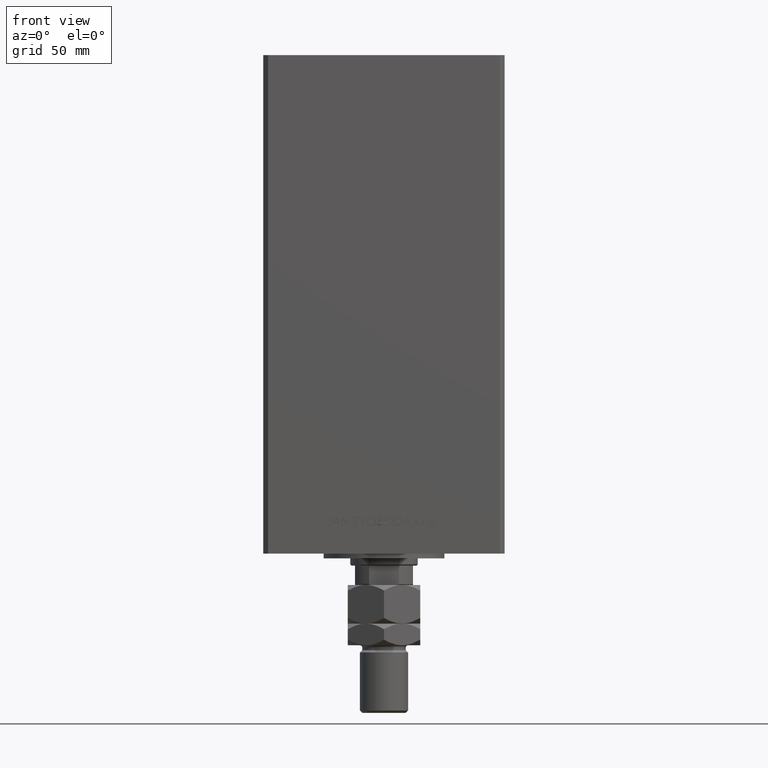
[diagram: clean part render]
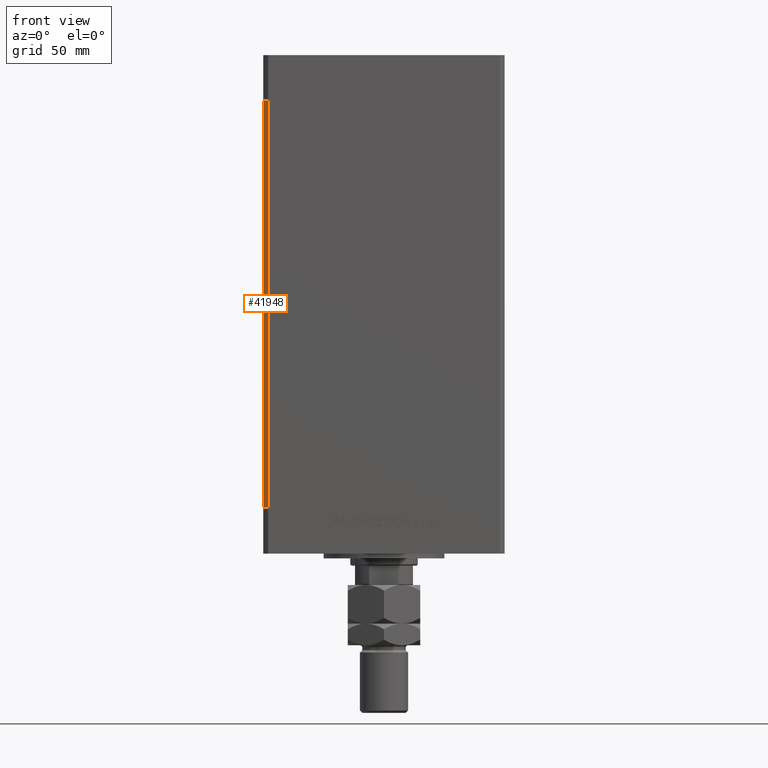
[diagram: same view with one face highlighted and labeled with its STEP entity id]
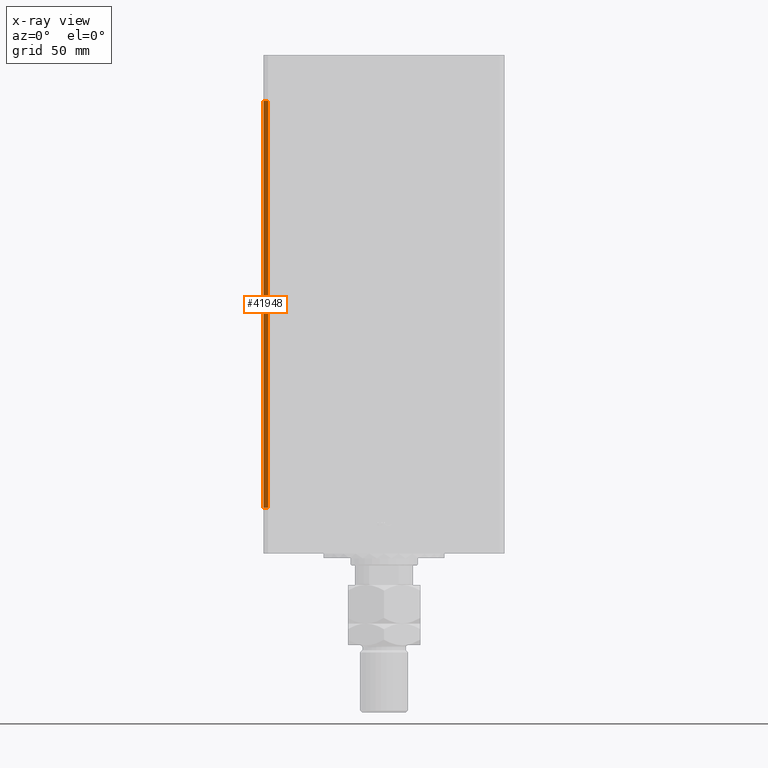
[diagram: x-ray of the same camera — body ghosted, the highlighted face saturated]
A machine part, front view. The second image highlights one B-rep face of the part: STEP entity #41948.
The next image is the same camera in x-ray: the body ghosted, the highlighted face saturated — about 0% of this face is hidden behind the body in this view.
In plain terms, the highlighted planar face has unit normal (0.7071, 0.7071, 0).
Its self-contained STEP definition (entity closure, byte-faithful):
#374 = DIRECTION ( 'NONE',  ( -0.7071067811865474617, 0.7071067811865474617, 0.000000000000000000 ) ) ;
#1602 = CARTESIAN_POINT ( 'NONE',  ( -49.99999999999998579, -41.49999999999999289, 168.5000000000000000 ) ) ;
#2316 = VERTEX_POINT ( 'NONE', #23486 ) ;
#4036 = CARTESIAN_POINT ( 'NONE',  ( -49.99999999999998579, -41.49999999999999289, 0.000000000000000000 ) ) ;
#4288 = DIRECTION ( 'NONE',  ( -0.000000000000000000, -0.000000000000000000, -1.000000000000000000 ) ) ;
#4992 = CARTESIAN_POINT ( 'NONE',  ( -49.99999999999998579, -41.49999999999999289, 168.5000000000000000 ) ) ;
#5937 = VECTOR ( 'NONE', #37376, 1000.000000000000000 ) ;
#6165 = ORIENTED_EDGE ( 'NONE', *, *, #50470, .F. ) ;
#8422 = VERTEX_POINT ( 'NONE', #33880 ) ;
#11354 = VECTOR ( 'NONE', #32681, 1000.000000000000114 ) ;
#13652 = LINE ( 'NONE', #1602, #11354 ) ;
#16341 = CARTESIAN_POINT ( 'NONE',  ( -49.99999999999998579, -41.49999999999999289, 168.5000000000000000 ) ) ;
#16822 = AXIS2_PLACEMENT_3D ( 'NONE', #4992, #23494, #374 ) ;
#19130 = ORIENTED_EDGE ( 'NONE', *, *, #40524, .T. ) ;
#19706 = DIRECTION ( 'NONE',  ( 0.7071067811865474617, -0.7071067811865474617, 0.000000000000000000 ) ) ;
#22187 = EDGE_CURVE ( 'NONE', #38350, #8422, #27919, .T. ) ;
#23461 = EDGE_CURVE ( 'NONE', #25823, #2316, #13652, .T. ) ;
#23486 = CARTESIAN_POINT ( 'NONE',  ( -47.99999999999998579, -43.50000000000000000, 168.5000000000000000 ) ) ;
#23494 = DIRECTION ( 'NONE',  ( 0.7071067811865475727, 0.7071067811865475727, -0.000000000000000000 ) ) ;
#24120 = VECTOR ( 'NONE', #4288, 1000.000000000000000 ) ;
#24847 = CARTESIAN_POINT ( 'NONE',  ( -47.99999999999998579, -43.50000000000000000, 168.5000000000000000 ) ) ;
#25823 = VERTEX_POINT ( 'NONE', #45870 ) ;
#26547 = ORIENTED_EDGE ( 'NONE', *, *, #22187, .T. ) ;
#27919 = LINE ( 'NONE', #4036, #40015 ) ;
#32681 = DIRECTION ( 'NONE',  ( 0.7071067811865474617, -0.7071067811865474617, 0.000000000000000000 ) ) ;
#33880 = CARTESIAN_POINT ( 'NONE',  ( -47.99999999999998579, -43.50000000000000000, 0.000000000000000000 ) ) ;
#35287 = FACE_OUTER_BOUND ( 'NONE', #38351, .T. ) ;
#37376 = DIRECTION ( 'NONE',  ( -0.000000000000000000, -0.000000000000000000, -1.000000000000000000 ) ) ;
#38350 = VERTEX_POINT ( 'NONE', #47474 ) ;
#38351 = EDGE_LOOP ( 'NONE', ( #26547, #6165, #41237, #19130 ) ) ;
#40015 = VECTOR ( 'NONE', #19706, 1000.000000000000114 ) ;
#40524 = EDGE_CURVE ( 'NONE', #25823, #38350, #47940, .T. ) ;
#41237 = ORIENTED_EDGE ( 'NONE', *, *, #23461, .F. ) ;
#41245 = LINE ( 'NONE', #24847, #5937 ) ;
#41948 = ADVANCED_FACE ( 'NONE', ( #35287 ), #47095, .F. ) ;
#45870 = CARTESIAN_POINT ( 'NONE',  ( -49.99999999999998579, -41.49999999999999289, 168.5000000000000000 ) ) ;
#47095 = PLANE ( 'NONE',  #16822 ) ;
#47474 = CARTESIAN_POINT ( 'NONE',  ( -49.99999999999998579, -41.49999999999999289, 0.000000000000000000 ) ) ;
#47940 = LINE ( 'NONE', #16341, #24120 ) ;
#50470 = EDGE_CURVE ( 'NONE', #2316, #8422, #41245, .T. ) ;